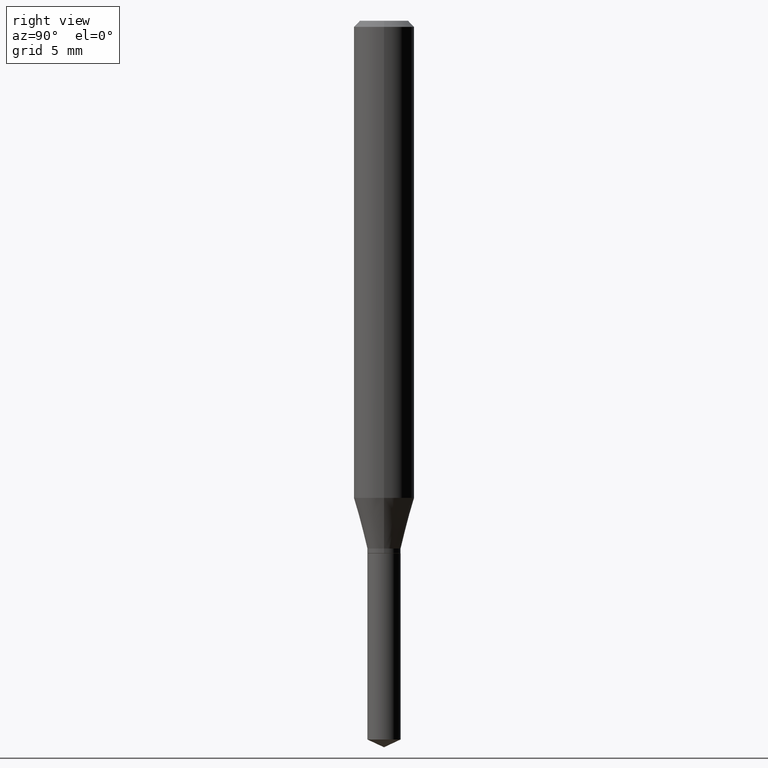
[diagram: clean part render]
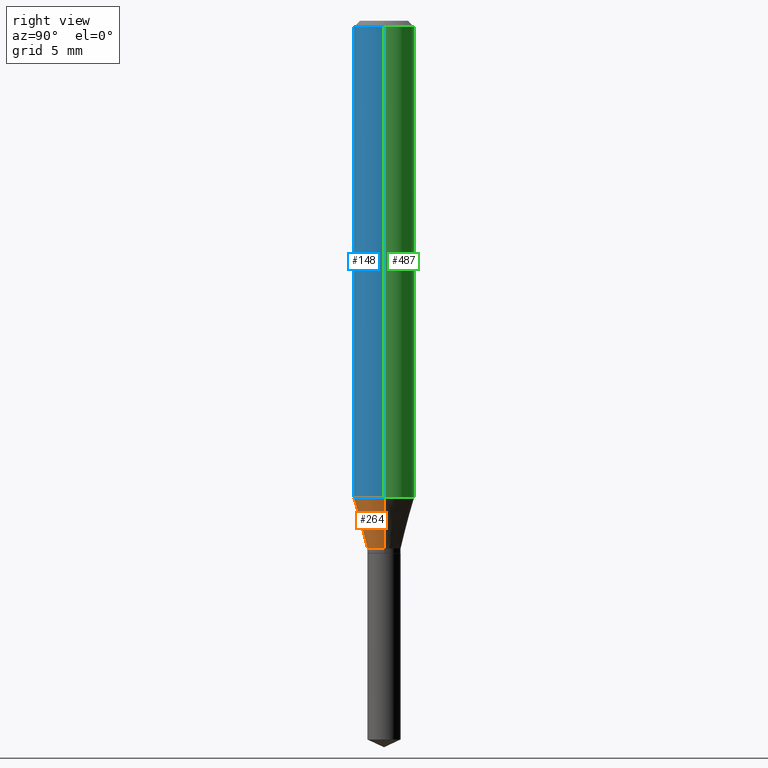
[diagram: same view with three faces highlighted in distinct colors, each labeled with its STEP entity id]
A machine part, right view with three faces highlighted in distinct colors.
Their STEP definitions:

[orange] entity #264 — the highlighted conical surface has half-angle 15 deg.
#14 = VECTOR ( 'NONE', #380, 39.37007874015748854 ) ;
#48 = LINE ( 'NONE', #90, #14 ) ;
#52 = AXIS2_PLACEMENT_3D ( 'NONE', #436, #178, #290 ) ;
#73 = CARTESIAN_POINT ( 'NONE',  ( -0.06250000000000012490, -2.995075684793045236E-15, -0.9850159748476928767 ) ) ;
#74 = VERTEX_POINT ( 'NONE', #342 ) ;
#80 = EDGE_LOOP ( 'NONE', ( #164, #451, #471, #224 ) ) ;
#82 = AXIS2_PLACEMENT_3D ( 'NONE', #216, #134, #292 ) ;
#85 = VERTEX_POINT ( 'NONE', #417 ) ;
#90 = CARTESIAN_POINT ( 'NONE',  ( -0.03445000000000000145, -3.559885242468021174E-15, -1.089700000000000113 ) ) ;
#130 = EDGE_CURVE ( 'NONE', #85, #372, #48, .T. ) ;
#134 = DIRECTION ( 'NONE',  ( -2.445468806185136597E-29, 3.491481338843145583E-15, 1.000000000000000000 ) ) ;
#151 = DIRECTION ( 'NONE',  ( -2.445468806185136597E-29, 3.491481338843145583E-15, 1.000000000000000000 ) ) ;
#157 = DIRECTION ( 'NONE',  ( 0.2588190451025212391, 1.565188264969622362E-15, 0.9659258262890679791 ) ) ;
#164 = ORIENTED_EDGE ( 'NONE', *, *, #130, .F. ) ;
#178 = DIRECTION ( 'NONE',  ( -2.445468806185136597E-29, 3.491481338843145583E-15, 1.000000000000000000 ) ) ;
#184 = CARTESIAN_POINT ( 'NONE',  ( 0.03445000000000000145, -4.045230279183668208E-15, -1.089700000000000113 ) ) ;
#216 = CARTESIAN_POINT ( 'NONE',  ( 2.664827358099943591E-29, -3.804667214937376339E-15, -1.089700000000000113 ) ) ;
#224 = ORIENTED_EDGE ( 'NONE', *, *, #393, .F. ) ;
#248 = CIRCLE ( 'NONE', #376, 0.06250000000000012490 ) ;
#264 = ADVANCED_FACE ( 'NONE', ( #466 ), #405, .T. ) ;
#270 = DIRECTION ( 'NONE',  ( 1.000000000000000000, -6.982962677686264344E-15, 0.000000000000000000 ) ) ;
#290 = DIRECTION ( 'NONE',  ( 1.000000000000000000, -6.982962677686265922E-15, 0.000000000000000000 ) ) ;
#292 = DIRECTION ( 'NONE',  ( 1.000000000000000000, -6.982962677686265922E-15, 0.000000000000000000 ) ) ;
#305 = CARTESIAN_POINT ( 'NONE',  ( 2.408825840084076168E-29, -3.439164894643109430E-15, -0.9850159748476928767 ) ) ;
#315 = EDGE_CURVE ( 'NONE', #85, #74, #414, .T. ) ;
#331 = CARTESIAN_POINT ( 'NONE',  ( 0.06250000000000012490, -3.875600061998501888E-15, -0.9850159748476928767 ) ) ;
#342 = CARTESIAN_POINT ( 'NONE',  ( 0.03445000000000000145, -4.045230279183668208E-15, -1.089700000000000113 ) ) ;
#372 = VERTEX_POINT ( 'NONE', #73 ) ;
#376 = AXIS2_PLACEMENT_3D ( 'NONE', #305, #151, #270 ) ;
#380 = DIRECTION ( 'NONE',  ( -0.2588190451025212391, 5.211531920934549464E-15, 0.9659258262890679791 ) ) ;
#384 = VERTEX_POINT ( 'NONE', #331 ) ;
#393 = EDGE_CURVE ( 'NONE', #372, #384, #248, .T. ) ;
#405 = CONICAL_SURFACE ( 'NONE', #82, 0.03445000000000000145, 0.2617993877991499629 ) ;
#414 = CIRCLE ( 'NONE', #52, 0.03445000000000000145 ) ;
#417 = CARTESIAN_POINT ( 'NONE',  ( -0.03445000000000000145, -3.576993501028352698E-15, -1.089700000000000113 ) ) ;
#436 = CARTESIAN_POINT ( 'NONE',  ( 2.664827358099943591E-29, -3.804667214937376339E-15, -1.089700000000000113 ) ) ;
#451 = ORIENTED_EDGE ( 'NONE', *, *, #315, .T. ) ;
#456 = LINE ( 'NONE', #184, #468 ) ;
#459 = EDGE_CURVE ( 'NONE', #74, #384, #456, .T. ) ;
#466 = FACE_OUTER_BOUND ( 'NONE', #80, .T. ) ;
#468 = VECTOR ( 'NONE', #157, 39.37007874015748854 ) ;
#471 = ORIENTED_EDGE ( 'NONE', *, *, #459, .T. ) ;

[blue] entity #148 — the highlighted cylindrical surface (edge-blend (fillet) strip) has radius 1.5875 mm, axis along (-0, 0, 1).
#5 = ORIENTED_EDGE ( 'NONE', *, *, #202, .T. ) ;
#13 = CYLINDRICAL_SURFACE ( 'NONE', #172, 0.06250000000000005551 ) ;
#36 = DIRECTION ( 'NONE',  ( -2.445468806185136597E-29, 3.491481338843145583E-15, 1.000000000000000000 ) ) ;
#50 = ORIENTED_EDGE ( 'NONE', *, *, #430, .F. ) ;
#54 = DIRECTION ( 'NONE',  ( 1.000000000000000000, -6.982962677686267499E-15, 4.876176775795936353E-29 ) ) ;
#57 = FACE_OUTER_BOUND ( 'NONE', #306, .T. ) ;
#69 = VERTEX_POINT ( 'NONE', #165 ) ;
#73 = CARTESIAN_POINT ( 'NONE',  ( -0.06250000000000012490, -2.995075684793045236E-15, -0.9850159748476928767 ) ) ;
#83 = ORIENTED_EDGE ( 'NONE', *, *, #393, .T. ) ;
#111 = CARTESIAN_POINT ( 'NONE',  ( 3.056836007731440977E-31, -4.364351673553961068E-17, -0.01250000000000008223 ) ) ;
#126 = ORIENTED_EDGE ( 'NONE', *, *, #173, .F. ) ;
#128 = VECTOR ( 'NONE', #429, 39.37007874015748143 ) ;
#131 = DIRECTION ( 'NONE',  ( -2.445468806185136877E-29, 3.491481338843145188E-15, 1.000000000000000000 ) ) ;
#138 = CARTESIAN_POINT ( 'NONE',  ( 0.06250000000000005551, -4.364351673553921131E-16, 3.047610484872463023E-30 ) ) ;
#148 = ADVANCED_FACE ( 'NONE', ( #57 ), #13, .T. ) ;
#151 = DIRECTION ( 'NONE',  ( -2.445468806185136597E-29, 3.491481338843145583E-15, 1.000000000000000000 ) ) ;
#165 = CARTESIAN_POINT ( 'NONE',  ( 0.06250000000000000000, -4.800786840909312308E-16, -0.01250000000000008223 ) ) ;
#172 = AXIS2_PLACEMENT_3D ( 'NONE', #312, #462, #54 ) ;
#173 = EDGE_CURVE ( 'NONE', #372, #199, #388, .T. ) ;
#181 = AXIS2_PLACEMENT_3D ( 'NONE', #111, #36, #441 ) ;
#199 = VERTEX_POINT ( 'NONE', #390 ) ;
#202 = EDGE_CURVE ( 'NONE', #384, #69, #356, .T. ) ;
#203 = CARTESIAN_POINT ( 'NONE',  ( -0.06250000000000005551, 4.440892098500630106E-16, -3.074334431409318916E-30 ) ) ;
#214 = VECTOR ( 'NONE', #131, 39.37007874015748143 ) ;
#248 = CIRCLE ( 'NONE', #376, 0.06250000000000012490 ) ;
#270 = DIRECTION ( 'NONE',  ( 1.000000000000000000, -6.982962677686264344E-15, 0.000000000000000000 ) ) ;
#305 = CARTESIAN_POINT ( 'NONE',  ( 2.408825840084076168E-29, -3.439164894643109430E-15, -0.9850159748476928767 ) ) ;
#306 = EDGE_LOOP ( 'NONE', ( #126, #83, #5, #50 ) ) ;
#312 = CARTESIAN_POINT ( 'NONE',  ( 0.000000000000000000, 0.000000000000000000, 0.000000000000000000 ) ) ;
#327 = CIRCLE ( 'NONE', #181, 0.06250000000000000000 ) ;
#331 = CARTESIAN_POINT ( 'NONE',  ( 0.06250000000000012490, -3.875600061998501888E-15, -0.9850159748476928767 ) ) ;
#356 = LINE ( 'NONE', #138, #128 ) ;
#372 = VERTEX_POINT ( 'NONE', #73 ) ;
#376 = AXIS2_PLACEMENT_3D ( 'NONE', #305, #151, #270 ) ;
#384 = VERTEX_POINT ( 'NONE', #331 ) ;
#388 = LINE ( 'NONE', #203, #214 ) ;
#390 = CARTESIAN_POINT ( 'NONE',  ( -0.06250000000000000000, -1.297314995839260696E-15, -0.01250000000000008223 ) ) ;
#393 = EDGE_CURVE ( 'NONE', #372, #384, #248, .T. ) ;
#429 = DIRECTION ( 'NONE',  ( -2.445468806185136877E-29, 3.491481338843145188E-15, 1.000000000000000000 ) ) ;
#430 = EDGE_CURVE ( 'NONE', #199, #69, #327, .T. ) ;
#441 = DIRECTION ( 'NONE',  ( 1.000000000000000000, -6.982962677686266711E-15, 0.000000000000000000 ) ) ;
#462 = DIRECTION ( 'NONE',  ( -2.445468806185136597E-29, 3.491481338843145583E-15, 1.000000000000000000 ) ) ;

[green] entity #487 — the highlighted cylindrical surface (edge-blend (fillet) strip) has radius 1.5875 mm, axis along (-0, 0, 1).
#10 = AXIS2_PLACEMENT_3D ( 'NONE', #187, #108, #160 ) ;
#37 = ORIENTED_EDGE ( 'NONE', *, *, #202, .F. ) ;
#39 = AXIS2_PLACEMENT_3D ( 'NONE', #426, #195, #425 ) ;
#53 = EDGE_CURVE ( 'NONE', #69, #199, #396, .T. ) ;
#69 = VERTEX_POINT ( 'NONE', #165 ) ;
#73 = CARTESIAN_POINT ( 'NONE',  ( -0.06250000000000012490, -2.995075684793045236E-15, -0.9850159748476928767 ) ) ;
#87 = DIRECTION ( 'NONE',  ( -2.445468806185136597E-29, 3.491481338843145583E-15, 1.000000000000000000 ) ) ;
#108 = DIRECTION ( 'NONE',  ( -2.445468806185136597E-29, 3.491481338843145583E-15, 1.000000000000000000 ) ) ;
#115 = ORIENTED_EDGE ( 'NONE', *, *, #173, .T. ) ;
#118 = CYLINDRICAL_SURFACE ( 'NONE', #10, 0.06250000000000005551 ) ;
#128 = VECTOR ( 'NONE', #429, 39.37007874015748143 ) ;
#131 = DIRECTION ( 'NONE',  ( -2.445468806185136877E-29, 3.491481338843145188E-15, 1.000000000000000000 ) ) ;
#138 = CARTESIAN_POINT ( 'NONE',  ( 0.06250000000000005551, -4.364351673553921131E-16, 3.047610484872463023E-30 ) ) ;
#160 = DIRECTION ( 'NONE',  ( 1.000000000000000000, -6.982962677686267499E-15, 4.876176775795936353E-29 ) ) ;
#165 = CARTESIAN_POINT ( 'NONE',  ( 0.06250000000000000000, -4.800786840909312308E-16, -0.01250000000000008223 ) ) ;
#166 = EDGE_CURVE ( 'NONE', #384, #372, #427, .T. ) ;
#173 = EDGE_CURVE ( 'NONE', #372, #199, #388, .T. ) ;
#187 = CARTESIAN_POINT ( 'NONE',  ( 0.000000000000000000, 0.000000000000000000, 0.000000000000000000 ) ) ;
#195 = DIRECTION ( 'NONE',  ( -2.445468806185136597E-29, 3.491481338843145583E-15, 1.000000000000000000 ) ) ;
#199 = VERTEX_POINT ( 'NONE', #390 ) ;
#202 = EDGE_CURVE ( 'NONE', #384, #69, #356, .T. ) ;
#203 = CARTESIAN_POINT ( 'NONE',  ( -0.06250000000000005551, 4.440892098500630106E-16, -3.074334431409318916E-30 ) ) ;
#214 = VECTOR ( 'NONE', #131, 39.37007874015748143 ) ;
#297 = ORIENTED_EDGE ( 'NONE', *, *, #166, .T. ) ;
#331 = CARTESIAN_POINT ( 'NONE',  ( 0.06250000000000012490, -3.875600061998501888E-15, -0.9850159748476928767 ) ) ;
#344 = EDGE_LOOP ( 'NONE', ( #297, #115, #381, #37 ) ) ;
#356 = LINE ( 'NONE', #138, #128 ) ;
#372 = VERTEX_POINT ( 'NONE', #73 ) ;
#381 = ORIENTED_EDGE ( 'NONE', *, *, #53, .F. ) ;
#384 = VERTEX_POINT ( 'NONE', #331 ) ;
#387 = DIRECTION ( 'NONE',  ( 1.000000000000000000, -6.982962677686264344E-15, 0.000000000000000000 ) ) ;
#388 = LINE ( 'NONE', #203, #214 ) ;
#390 = CARTESIAN_POINT ( 'NONE',  ( -0.06250000000000000000, -1.297314995839260696E-15, -0.01250000000000008223 ) ) ;
#396 = CIRCLE ( 'NONE', #39, 0.06250000000000000000 ) ;
#424 = CARTESIAN_POINT ( 'NONE',  ( 2.408825840084076168E-29, -3.439164894643109430E-15, -0.9850159748476928767 ) ) ;
#425 = DIRECTION ( 'NONE',  ( 1.000000000000000000, -6.982962677686266711E-15, 0.000000000000000000 ) ) ;
#426 = CARTESIAN_POINT ( 'NONE',  ( 3.056836007731440977E-31, -4.364351673553961068E-17, -0.01250000000000008223 ) ) ;
#427 = CIRCLE ( 'NONE', #443, 0.06250000000000012490 ) ;
#429 = DIRECTION ( 'NONE',  ( -2.445468806185136877E-29, 3.491481338843145188E-15, 1.000000000000000000 ) ) ;
#443 = AXIS2_PLACEMENT_3D ( 'NONE', #424, #87, #387 ) ;
#450 = FACE_OUTER_BOUND ( 'NONE', #344, .T. ) ;
#487 = ADVANCED_FACE ( 'NONE', ( #450 ), #118, .T. ) ;